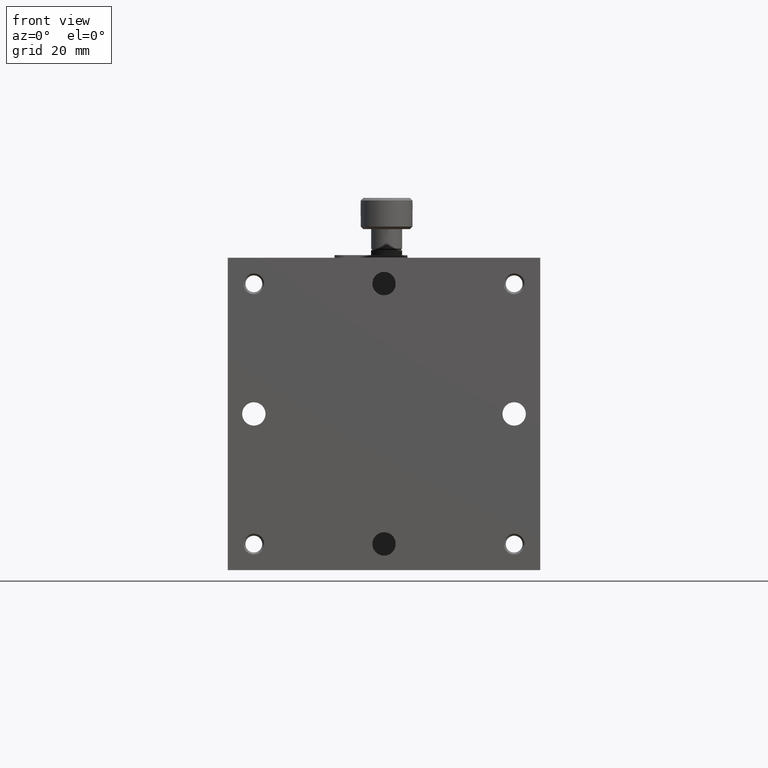
[diagram: clean part render]
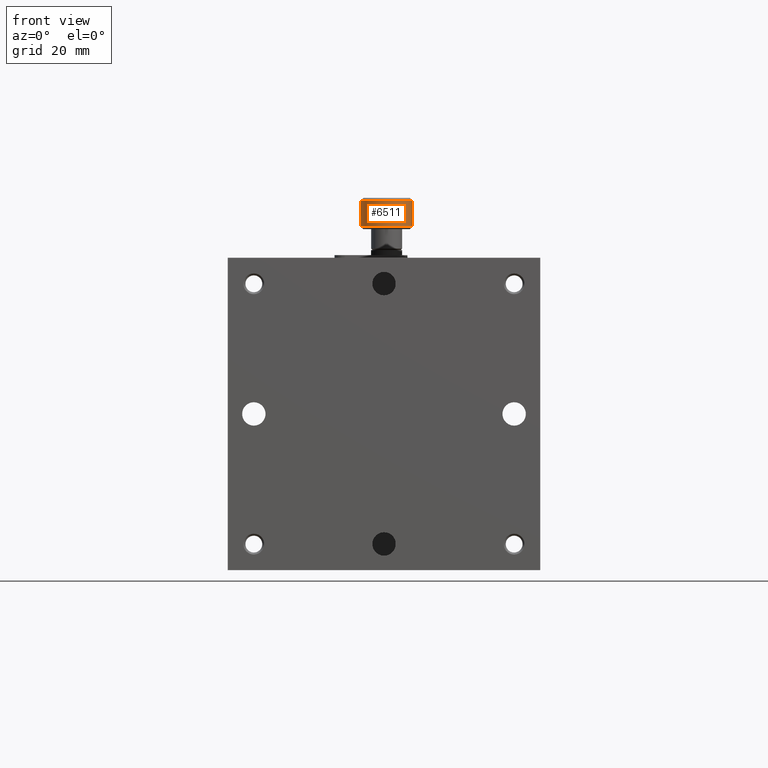
[diagram: same view with one face highlighted and labeled with its STEP entity id]
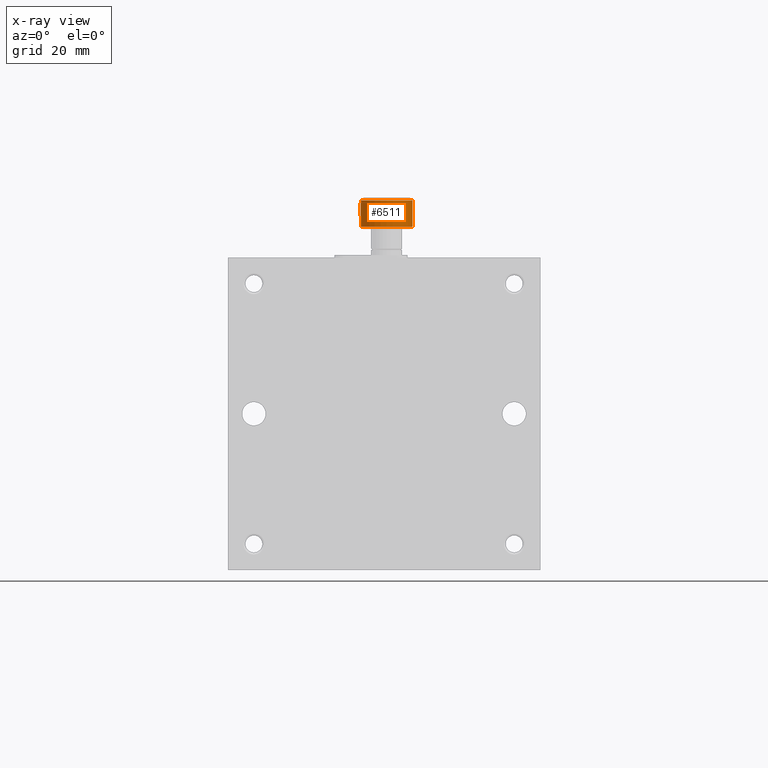
[diagram: x-ray of the same camera — body ghosted, the highlighted face saturated]
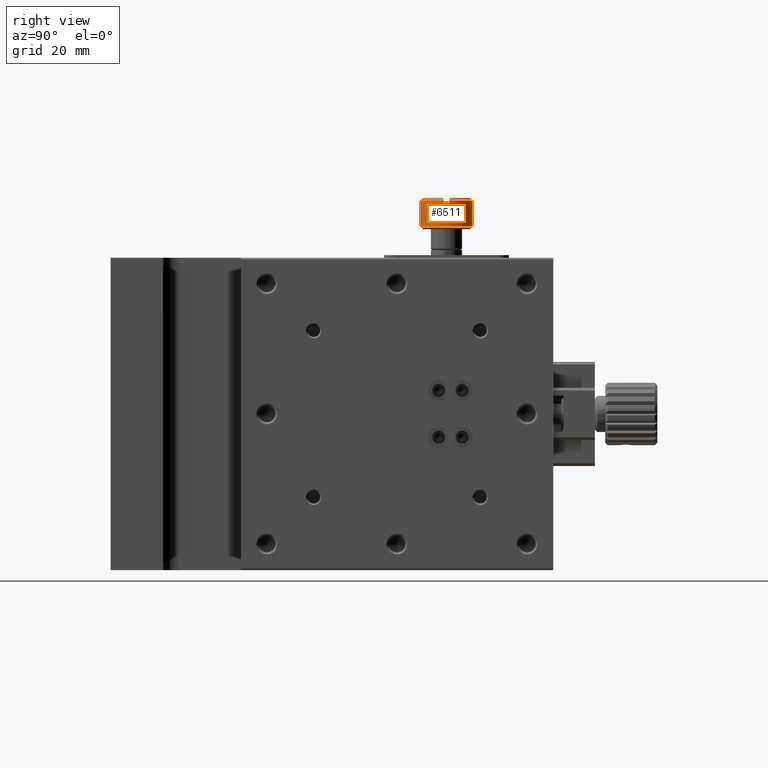
[diagram: same view with one face highlighted and labeled with its STEP entity id]
A machine part, front view. The second image highlights one B-rep face of the part: STEP entity #6511.
The next image is the same camera in x-ray: the body ghosted, the highlighted face saturated — about 0% of this face is hidden behind the body in this view.
A second angle (right view) of the same face is appended — the face is thin or edge-on in the first view.
In plain terms, the highlighted cylindrical surface (bore or boss wall) has radius 5 mm, axis along (0, 0, -1).
Its self-contained STEP definition (entity closure, byte-faithful):
#176 = VERTEX_POINT ( 'NONE', #1690 ) ;
#187 = CARTESIAN_POINT ( 'NONE',  ( 25.53613054160369700, 63.90000000000001279, 11.50000000000000711 ) ) ;
#229 = DIRECTION ( 'NONE',  ( 0.000000000000000000, 1.000000000000000000, 0.000000000000000000 ) ) ;
#230 = ORIENTED_EDGE ( 'NONE', *, *, #1927, .F. ) ;
#328 = ORIENTED_EDGE ( 'NONE', *, *, #6110, .T. ) ;
#583 = CARTESIAN_POINT ( 'NONE',  ( 35.46386945839633853, 63.90000000000001279, 11.50000000000000711 ) ) ;
#587 = CIRCLE ( 'NONE', #2671, 5.000000000000004441 ) ;
#870 = CIRCLE ( 'NONE', #8676, 5.000000000000004441 ) ;
#984 = DIRECTION ( 'NONE',  ( 0.000000000000000000, 0.000000000000000000, -1.000000000000000000 ) ) ;
#1092 = VERTEX_POINT ( 'NONE', #2251 ) ;
#1204 = VECTOR ( 'NONE', #5454, 1000.000000000000000 ) ;
#1399 = LINE ( 'NONE', #583, #8008 ) ;
#1496 = CARTESIAN_POINT ( 'NONE',  ( 30.50000000000000000, 64.50000000000000000, -2.499999999999992895 ) ) ;
#1549 = CARTESIAN_POINT ( 'NONE',  ( 35.46386945839633853, 65.10000000000000853, 10.50000000000000711 ) ) ;
#1657 = VERTEX_POINT ( 'NONE', #9830 ) ;
#1690 = CARTESIAN_POINT ( 'NONE',  ( 35.46386945839633853, 65.10000000000000853, 10.99999999999637090 ) ) ;
#1927 = EDGE_CURVE ( 'NONE', #1657, #9877, #1399, .T. ) ;
#1978 = CARTESIAN_POINT ( 'NONE',  ( 30.50000000000000000, 64.50000000000000000, 5.999999999971812770 ) ) ;
#2169 = CARTESIAN_POINT ( 'NONE',  ( 30.50000000000000000, 59.50000000003456790, 5.999999999971812770 ) ) ;
#2251 = CARTESIAN_POINT ( 'NONE',  ( 35.46386945839633853, 65.10000000000000853, 10.50000000000000711 ) ) ;
#2305 = DIRECTION ( 'NONE',  ( -0.000000000000000000, -0.000000000000000000, 1.000000000000000000 ) ) ;
#2364 = DIRECTION ( 'NONE',  ( 0.000000000000000000, 0.000000000000000000, -1.000000000000000000 ) ) ;
#2497 = ORIENTED_EDGE ( 'NONE', *, *, #4928, .F. ) ;
#2671 = AXIS2_PLACEMENT_3D ( 'NONE', #9739, #7996, #5449 ) ;
#2852 = CIRCLE ( 'NONE', #8917, 5.000000000000004441 ) ;
#2883 = VERTEX_POINT ( 'NONE', #2169 ) ;
#3244 = CARTESIAN_POINT ( 'NONE',  ( 25.53613054160369700, 65.10000000000000853, 10.50000000000000711 ) ) ;
#3269 = CARTESIAN_POINT ( 'NONE',  ( 25.53613054160367568, 63.90000000000001279, 10.99999999999639044 ) ) ;
#3414 = ORIENTED_EDGE ( 'NONE', *, *, #3432, .F. ) ;
#3432 = EDGE_CURVE ( 'NONE', #9877, #1092, #587, .T. ) ;
#3771 = EDGE_CURVE ( 'NONE', #1657, #7934, #2852, .T. ) ;
#3846 = LINE ( 'NONE', #1549, #1204 ) ;
#3860 = ORIENTED_EDGE ( 'NONE', *, *, #7318, .F. ) ;
#3911 = DIRECTION ( 'NONE',  ( -0.000000000000000000, -0.000000000000000000, -1.000000000000000000 ) ) ;
#3996 = VERTEX_POINT ( 'NONE', #6518 ) ;
#4149 = CIRCLE ( 'NONE', #4661, 4.999999999965434760 ) ;
#4591 = DIRECTION ( 'NONE',  ( 2.775557561562888984E-15, 1.000000000000000000, 0.000000000000000000 ) ) ;
#4661 = AXIS2_PLACEMENT_3D ( 'NONE', #1978, #6218, #5135 ) ;
#4678 = EDGE_LOOP ( 'NONE', ( #3860 ) ) ;
#4822 = DIRECTION ( 'NONE',  ( 0.000000000000000000, 1.000000000000000000, 0.000000000000000000 ) ) ;
#4831 = CIRCLE ( 'NONE', #8100, 5.000000000000004441 ) ;
#4865 = CARTESIAN_POINT ( 'NONE',  ( 25.53613054160367568, 63.90000000000001279, 10.50000000000000711 ) ) ;
#4928 = EDGE_CURVE ( 'NONE', #3996, #8405, #7359, .T. ) ;
#5135 = DIRECTION ( 'NONE',  ( 0.000000000000000000, -1.000000000000000000, 0.000000000000000000 ) ) ;
#5294 = DIRECTION ( 'NONE',  ( 0.000000000000000000, 0.000000000000000000, 1.000000000000000000 ) ) ;
#5449 = DIRECTION ( 'NONE',  ( 0.000000000000000000, 1.000000000000000000, 0.000000000000000000 ) ) ;
#5454 = DIRECTION ( 'NONE',  ( -0.000000000000000000, -0.000000000000000000, 1.000000000000000000 ) ) ;
#5630 = DIRECTION ( 'NONE',  ( 0.000000000000000000, 0.000000000000000000, -1.000000000000000000 ) ) ;
#5671 = ORIENTED_EDGE ( 'NONE', *, *, #9895, .F. ) ;
#6110 = EDGE_CURVE ( 'NONE', #3996, #176, #4831, .T. ) ;
#6218 = DIRECTION ( 'NONE',  ( -0.000000000000000000, -0.000000000000000000, -1.000000000000000000 ) ) ;
#6511 = ADVANCED_FACE ( 'NONE', ( #8168, #7193 ), #9750, .T. ) ;
#6518 = CARTESIAN_POINT ( 'NONE',  ( 25.53613054160550533, 65.10000000000000853, 10.99999999999818101 ) ) ;
#6550 = DIRECTION ( 'NONE',  ( 0.000000000000000000, 0.000000000000000000, -1.000000000000000000 ) ) ;
#6717 = AXIS2_PLACEMENT_3D ( 'NONE', #1496, #2364, #7244 ) ;
#7021 = CARTESIAN_POINT ( 'NONE',  ( 30.50000000000000000, 64.50000000000000000, 10.50000000000000711 ) ) ;
#7193 = FACE_OUTER_BOUND ( 'NONE', #4678, .T. ) ;
#7244 = DIRECTION ( 'NONE',  ( 0.000000000000000000, 1.000000000000000000, 0.000000000000000000 ) ) ;
#7318 = EDGE_CURVE ( 'NONE', #2883, #2883, #4149, .T. ) ;
#7359 = LINE ( 'NONE', #3244, #9652 ) ;
#7467 = CARTESIAN_POINT ( 'NONE',  ( 30.50000000000000000, 64.50000000000000000, 11.00000000000000711 ) ) ;
#7663 = CARTESIAN_POINT ( 'NONE',  ( 30.50000000000000000, 64.50000000000000000, 11.00000000000000711 ) ) ;
#7934 = VERTEX_POINT ( 'NONE', #3269 ) ;
#7996 = DIRECTION ( 'NONE',  ( -0.000000000000000000, -0.000000000000000000, 1.000000000000000000 ) ) ;
#8008 = VECTOR ( 'NONE', #3911, 1000.000000000000000 ) ;
#8100 = AXIS2_PLACEMENT_3D ( 'NONE', #7467, #5630, #4822 ) ;
#8168 = FACE_OUTER_BOUND ( 'NONE', #10709, .T. ) ;
#8338 = CARTESIAN_POINT ( 'NONE',  ( 25.53613054160367568, 65.10000000000000853, 10.50000000000000711 ) ) ;
#8405 = VERTEX_POINT ( 'NONE', #8338 ) ;
#8570 = VERTEX_POINT ( 'NONE', #4865 ) ;
#8593 = EDGE_CURVE ( 'NONE', #1092, #176, #3846, .T. ) ;
#8676 = AXIS2_PLACEMENT_3D ( 'NONE', #7021, #2305, #4591 ) ;
#8917 = AXIS2_PLACEMENT_3D ( 'NONE', #7663, #984, #229 ) ;
#9094 = CARTESIAN_POINT ( 'NONE',  ( 35.46386945839633853, 63.90000000000001279, 10.50000000000000711 ) ) ;
#9197 = VECTOR ( 'NONE', #5294, 1000.000000000000000 ) ;
#9652 = VECTOR ( 'NONE', #6550, 1000.000000000000000 ) ;
#9711 = ORIENTED_EDGE ( 'NONE', *, *, #10108, .F. ) ;
#9739 = CARTESIAN_POINT ( 'NONE',  ( 30.50000000000000000, 64.50000000000000000, 10.50000000000000711 ) ) ;
#9750 = CYLINDRICAL_SURFACE ( 'NONE', #6717, 5.000000000000004441 ) ;
#9830 = CARTESIAN_POINT ( 'NONE',  ( 35.46386945839451954, 63.90000000000001279, 10.99999999999817391 ) ) ;
#9877 = VERTEX_POINT ( 'NONE', #9094 ) ;
#9895 = EDGE_CURVE ( 'NONE', #8570, #7934, #10174, .T. ) ;
#9973 = ORIENTED_EDGE ( 'NONE', *, *, #8593, .F. ) ;
#10108 = EDGE_CURVE ( 'NONE', #8405, #8570, #870, .T. ) ;
#10174 = LINE ( 'NONE', #187, #9197 ) ;
#10415 = ORIENTED_EDGE ( 'NONE', *, *, #3771, .T. ) ;
#10709 = EDGE_LOOP ( 'NONE', ( #2497, #328, #9973, #3414, #230, #10415, #5671, #9711 ) ) ;